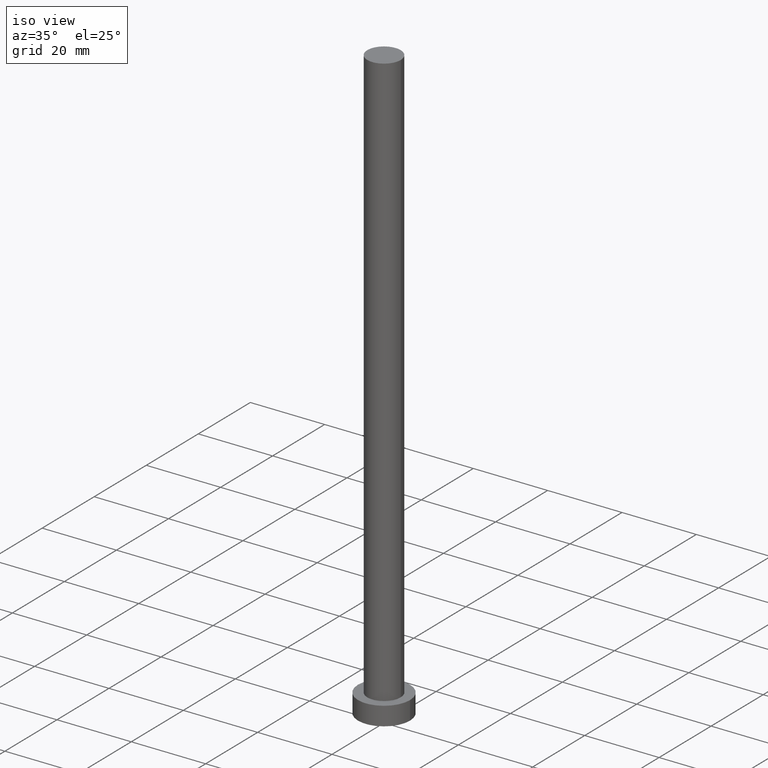
[diagram: clean part render]
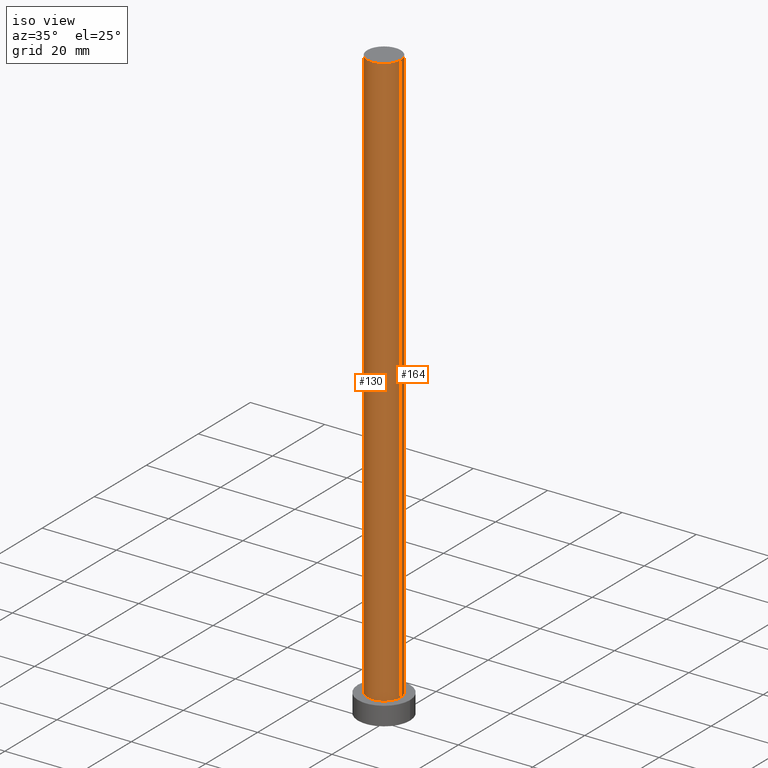
[diagram: same view with one multi-face feature highlighted, each face labeled with its STEP entity id]
A machine part, iso view. The highlighted faces form ONE feature: a constant-radius fillet chain: 2 tangent blend faces with common blend radius 4.5 mm. The faces share edges in the B-rep.
Their STEP definitions:
[1] entity #130 (Cylinder):
#2 = CYLINDRICAL_SURFACE ( 'NONE', #30, 4.500000000000000888 ) ;
#4 = CARTESIAN_POINT ( 'NONE',  ( -4.500000000000000888, 0.000000000000000000, 160.0000000000000000 ) ) ;
#22 = FACE_OUTER_BOUND ( 'NONE', #229, .T. ) ;
#30 = AXIS2_PLACEMENT_3D ( 'NONE', #253, #98, #59 ) ;
#39 = CARTESIAN_POINT ( 'NONE',  ( 4.500000000000000888, 5.510910596163089556E-16, 160.0000000000000000 ) ) ;
#51 = EDGE_CURVE ( 'NONE', #93, #92, #213, .T. ) ;
#55 = CARTESIAN_POINT ( 'NONE',  ( -4.500000000000000888, 0.000000000000000000, 5.000000000000000000 ) ) ;
#59 = DIRECTION ( 'NONE',  ( -1.000000000000000000, 0.000000000000000000, 0.000000000000000000 ) ) ;
#60 = DIRECTION ( 'NONE',  ( 0.000000000000000000, 0.000000000000000000, 1.000000000000000000 ) ) ;
#70 = DIRECTION ( 'NONE',  ( -0.000000000000000000, -0.000000000000000000, -1.000000000000000000 ) ) ;
#77 = DIRECTION ( 'NONE',  ( 1.000000000000000000, 0.000000000000000000, 0.000000000000000000 ) ) ;
#79 = VECTOR ( 'NONE', #70, 1000.000000000000000 ) ;
#80 = DIRECTION ( 'NONE',  ( 1.000000000000000000, 0.000000000000000000, 0.000000000000000000 ) ) ;
#92 = VERTEX_POINT ( 'NONE', #241 ) ;
#93 = VERTEX_POINT ( 'NONE', #39 ) ;
#94 = CARTESIAN_POINT ( 'NONE',  ( -4.500000000000000888, 0.000000000000000000, 160.0000000000000000 ) ) ;
#96 = CARTESIAN_POINT ( 'NONE',  ( 0.000000000000000000, 0.000000000000000000, 5.000000000000000000 ) ) ;
#98 = DIRECTION ( 'NONE',  ( -0.000000000000000000, -0.000000000000000000, -1.000000000000000000 ) ) ;
#109 = AXIS2_PLACEMENT_3D ( 'NONE', #96, #60, #77 ) ;
#110 = ORIENTED_EDGE ( 'NONE', *, *, #141, .T. ) ;
#130 = ADVANCED_FACE ( 'NONE', ( #22 ), #2, .T. ) ;
#136 = VERTEX_POINT ( 'NONE', #55 ) ;
#141 = EDGE_CURVE ( 'NONE', #136, #92, #152, .T. ) ;
#143 = CARTESIAN_POINT ( 'NONE',  ( 0.000000000000000000, 0.000000000000000000, 160.0000000000000000 ) ) ;
#150 = ORIENTED_EDGE ( 'NONE', *, *, #246, .F. ) ;
#151 = ORIENTED_EDGE ( 'NONE', *, *, #51, .F. ) ;
#152 = CIRCLE ( 'NONE', #109, 4.500000000000000888 ) ;
#154 = CIRCLE ( 'NONE', #181, 4.500000000000000888 ) ;
#173 = VERTEX_POINT ( 'NONE', #94 ) ;
#181 = AXIS2_PLACEMENT_3D ( 'NONE', #143, #255, #80 ) ;
#200 = VECTOR ( 'NONE', #220, 1000.000000000000000 ) ;
#213 = LINE ( 'NONE', #247, #79 ) ;
#220 = DIRECTION ( 'NONE',  ( -0.000000000000000000, -0.000000000000000000, -1.000000000000000000 ) ) ;
#229 = EDGE_LOOP ( 'NONE', ( #151, #150, #232, #110 ) ) ;
#232 = ORIENTED_EDGE ( 'NONE', *, *, #254, .T. ) ;
#237 = LINE ( 'NONE', #4, #200 ) ;
#241 = CARTESIAN_POINT ( 'NONE',  ( 4.500000000000000888, 5.510910596163089556E-16, 5.000000000000000000 ) ) ;
#246 = EDGE_CURVE ( 'NONE', #173, #93, #154, .T. ) ;
#247 = CARTESIAN_POINT ( 'NONE',  ( 4.500000000000000888, 5.510910596163089556E-16, 160.0000000000000000 ) ) ;
#253 = CARTESIAN_POINT ( 'NONE',  ( 0.000000000000000000, 0.000000000000000000, 160.0000000000000000 ) ) ;
#254 = EDGE_CURVE ( 'NONE', #173, #136, #237, .T. ) ;
#255 = DIRECTION ( 'NONE',  ( 0.000000000000000000, 0.000000000000000000, 1.000000000000000000 ) ) ;
[2] entity #164 (Cylinder):
#4 = CARTESIAN_POINT ( 'NONE',  ( -4.500000000000000888, 0.000000000000000000, 160.0000000000000000 ) ) ;
#7 = EDGE_CURVE ( 'NONE', #93, #173, #35, .T. ) ;
#16 = ORIENTED_EDGE ( 'NONE', *, *, #51, .T. ) ;
#18 = DIRECTION ( 'NONE',  ( 1.000000000000000000, 0.000000000000000000, 0.000000000000000000 ) ) ;
#34 = ORIENTED_EDGE ( 'NONE', *, *, #223, .T. ) ;
#35 = CIRCLE ( 'NONE', #235, 4.500000000000000888 ) ;
#37 = DIRECTION ( 'NONE',  ( -0.000000000000000000, -0.000000000000000000, -1.000000000000000000 ) ) ;
#39 = CARTESIAN_POINT ( 'NONE',  ( 4.500000000000000888, 5.510910596163089556E-16, 160.0000000000000000 ) ) ;
#51 = EDGE_CURVE ( 'NONE', #93, #92, #213, .T. ) ;
#55 = CARTESIAN_POINT ( 'NONE',  ( -4.500000000000000888, 0.000000000000000000, 5.000000000000000000 ) ) ;
#56 = DIRECTION ( 'NONE',  ( -1.000000000000000000, 0.000000000000000000, 0.000000000000000000 ) ) ;
#58 = CIRCLE ( 'NONE', #95, 4.500000000000000888 ) ;
#70 = DIRECTION ( 'NONE',  ( -0.000000000000000000, -0.000000000000000000, -1.000000000000000000 ) ) ;
#79 = VECTOR ( 'NONE', #70, 1000.000000000000000 ) ;
#92 = VERTEX_POINT ( 'NONE', #241 ) ;
#93 = VERTEX_POINT ( 'NONE', #39 ) ;
#94 = CARTESIAN_POINT ( 'NONE',  ( -4.500000000000000888, 0.000000000000000000, 160.0000000000000000 ) ) ;
#95 = AXIS2_PLACEMENT_3D ( 'NONE', #139, #177, #18 ) ;
#99 = FACE_OUTER_BOUND ( 'NONE', #233, .T. ) ;
#114 = DIRECTION ( 'NONE',  ( 0.000000000000000000, 0.000000000000000000, 1.000000000000000000 ) ) ;
#136 = VERTEX_POINT ( 'NONE', #55 ) ;
#139 = CARTESIAN_POINT ( 'NONE',  ( 0.000000000000000000, 0.000000000000000000, 5.000000000000000000 ) ) ;
#159 = CARTESIAN_POINT ( 'NONE',  ( 0.000000000000000000, 0.000000000000000000, 160.0000000000000000 ) ) ;
#162 = CYLINDRICAL_SURFACE ( 'NONE', #206, 4.500000000000000888 ) ;
#164 = ADVANCED_FACE ( 'NONE', ( #99 ), #162, .T. ) ;
#172 = CARTESIAN_POINT ( 'NONE',  ( 0.000000000000000000, 0.000000000000000000, 160.0000000000000000 ) ) ;
#173 = VERTEX_POINT ( 'NONE', #94 ) ;
#177 = DIRECTION ( 'NONE',  ( 0.000000000000000000, 0.000000000000000000, 1.000000000000000000 ) ) ;
#193 = ORIENTED_EDGE ( 'NONE', *, *, #254, .F. ) ;
#195 = DIRECTION ( 'NONE',  ( 1.000000000000000000, 0.000000000000000000, 0.000000000000000000 ) ) ;
#200 = VECTOR ( 'NONE', #220, 1000.000000000000000 ) ;
#206 = AXIS2_PLACEMENT_3D ( 'NONE', #159, #37, #56 ) ;
#213 = LINE ( 'NONE', #247, #79 ) ;
#220 = DIRECTION ( 'NONE',  ( -0.000000000000000000, -0.000000000000000000, -1.000000000000000000 ) ) ;
#223 = EDGE_CURVE ( 'NONE', #92, #136, #58, .T. ) ;
#233 = EDGE_LOOP ( 'NONE', ( #251, #16, #34, #193 ) ) ;
#235 = AXIS2_PLACEMENT_3D ( 'NONE', #172, #114, #195 ) ;
#237 = LINE ( 'NONE', #4, #200 ) ;
#241 = CARTESIAN_POINT ( 'NONE',  ( 4.500000000000000888, 5.510910596163089556E-16, 5.000000000000000000 ) ) ;
#247 = CARTESIAN_POINT ( 'NONE',  ( 4.500000000000000888, 5.510910596163089556E-16, 160.0000000000000000 ) ) ;
#251 = ORIENTED_EDGE ( 'NONE', *, *, #7, .F. ) ;
#254 = EDGE_CURVE ( 'NONE', #173, #136, #237, .T. ) ;